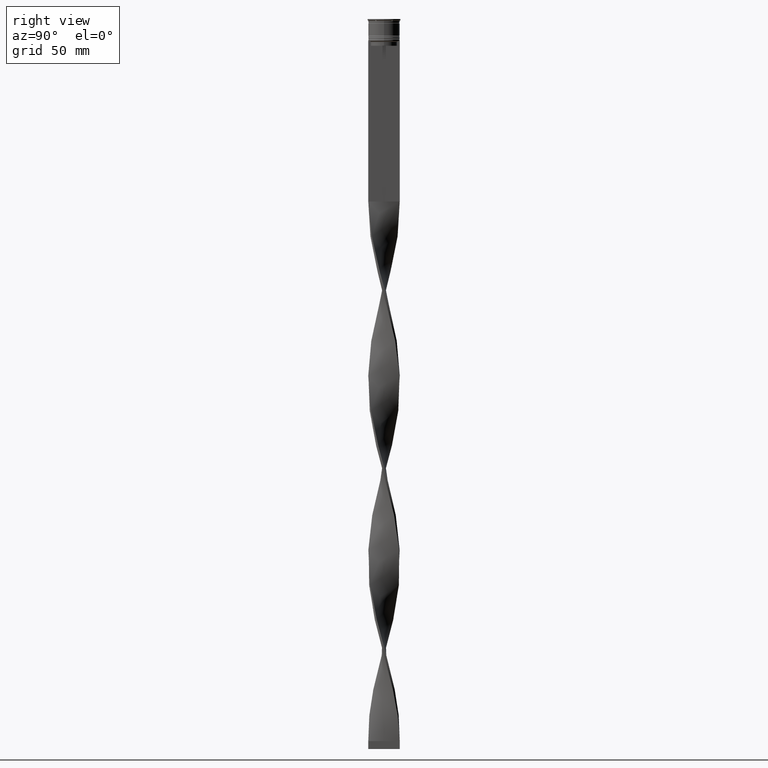
[diagram: clean part render]
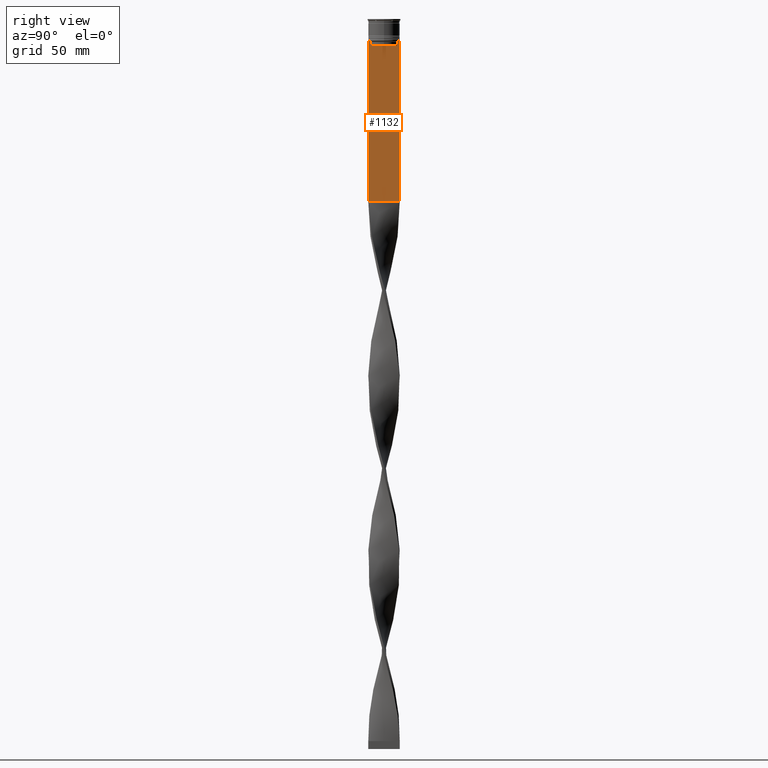
[diagram: same view with one face highlighted and labeled with its STEP entity id]
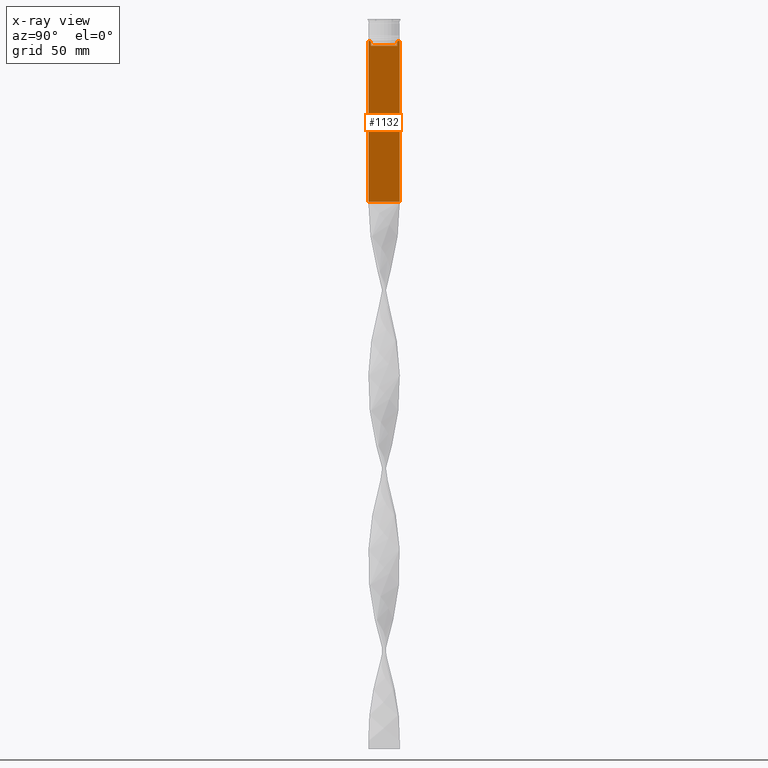
[diagram: x-ray of the same camera — body ghosted, the highlighted face saturated]
A machine part, right view. The second image highlights one B-rep face of the part: STEP entity #1132.
The next image is the same camera in x-ray: the body ghosted, the highlighted face saturated — about 0% of this face is hidden behind the body in this view.
In plain terms, the highlighted planar face has unit normal (-1, 0, 0).
Its self-contained STEP definition (entity closure, byte-faithful):
#22 = ORIENTED_EDGE ( 'NONE', *, *, #2847, .T. ) ;
#64 = CARTESIAN_POINT ( 'NONE',  ( 0.7500000000000001110, 9.871550030263739117, -14.00000000000000178 ) ) ;
#69 = VECTOR ( 'NONE', #2678, 1000.000000000000000 ) ;
#142 = ORIENTED_EDGE ( 'NONE', *, *, #377, .T. ) ;
#195 = CARTESIAN_POINT ( 'NONE',  ( 0.7500000000000001110, -8.366450860430608927, -17.00000000000000000 ) ) ;
#283 = EDGE_CURVE ( 'NONE', #2503, #1557, #3028, .T. ) ;
#349 = VERTEX_POINT ( 'NONE', #4151 ) ;
#364 = CARTESIAN_POINT ( 'NONE',  ( 0.7500000000000001110, 9.999999999999998224, 6.056171120131581098 ) ) ;
#377 = EDGE_CURVE ( 'NONE', #1167, #3737, #2797, .T. ) ;
#395 = ORIENTED_EDGE ( 'NONE', *, *, #491, .T. ) ;
#405 = LINE ( 'NONE', #2292, #3975 ) ;
#491 = EDGE_CURVE ( 'NONE', #2236, #4131, #3921, .T. ) ;
#504 = DIRECTION ( 'NONE',  ( 0.000000000000000000, 0.000000000000000000, -1.000000000000000000 ) ) ;
#507 = CARTESIAN_POINT ( 'NONE',  ( 0.7500000000000001110, 8.366450860430608927, -17.00000000000000000 ) ) ;
#565 = DIRECTION ( 'NONE',  ( 0.000000000000000000, -1.000000000000000000, 0.000000000000000000 ) ) ;
#603 = B_SPLINE_CURVE_WITH_KNOTS ( 'NONE', 3,
 ( #2564, #3943, #3193, #3157 ),
 .UNSPECIFIED., .F., .F.,
 ( 4, 4 ),
 ( 0.03866293624047253963, 0.03937282246709320616 ),
 .UNSPECIFIED. ) ;
#635 = AXIS2_PLACEMENT_3D ( 'NONE', #1492, #2860, #3490 ) ;
#732 = LINE ( 'NONE', #752, #899 ) ;
#752 = CARTESIAN_POINT ( 'NONE',  ( 0.7500000000000001110, -10.00000000000000533, -116.0000000000000000 ) ) ;
#814 = VERTEX_POINT ( 'NONE', #2828 ) ;
#829 = VECTOR ( 'NONE', #3901, 1000.000000000000000 ) ;
#899 = VECTOR ( 'NONE', #3820, 1000.000000000000000 ) ;
#990 = CARTESIAN_POINT ( 'NONE',  ( 0.7500000000000001110, -9.871550030263739117, -14.00000000000000178 ) ) ;
#1014 = CARTESIAN_POINT ( 'NONE',  ( 0.7500000000000001110, 8.533766897779925031, -14.33335221373273605 ) ) ;
#1043 = FACE_OUTER_BOUND ( 'NONE', #3156, .T. ) ;
#1052 = CARTESIAN_POINT ( 'NONE',  ( 0.7500000000000002220, 9.999999999999998224, -116.0000000000000000 ) ) ;
#1066 = EDGE_CURVE ( 'NONE', #1557, #1151, #1300, .T. ) ;
#1132 = ADVANCED_FACE ( 'NONE', ( #1043 ), #2732, .F. ) ;
#1139 = VECTOR ( 'NONE', #504, 1000.000000000000000 ) ;
#1151 = VERTEX_POINT ( 'NONE', #1586 ) ;
#1162 = CARTESIAN_POINT ( 'NONE',  ( 0.7500000000000001110, -10.00000000000000533, -14.00000000000000178 ) ) ;
#1167 = VERTEX_POINT ( 'NONE', #990 ) ;
#1300 = LINE ( 'NONE', #4322, #2346 ) ;
#1328 = CARTESIAN_POINT ( 'NONE',  ( 0.7500000000000001110, -10.00000000000000533, -14.00000000000000178 ) ) ;
#1365 = EDGE_CURVE ( 'NONE', #4154, #1167, #3514, .T. ) ;
#1429 = CARTESIAN_POINT ( 'NONE',  ( 0.7500000000000001110, -10.00000000000000533, 6.056171120131581098 ) ) ;
#1492 = CARTESIAN_POINT ( 'NONE',  ( 0.7500000000000001110, -10.00000000000000533, 6.056171120131581098 ) ) ;
#1557 = VERTEX_POINT ( 'NONE', #64 ) ;
#1571 = ORIENTED_EDGE ( 'NONE', *, *, #3239, .T. ) ;
#1586 = CARTESIAN_POINT ( 'NONE',  ( 0.7500000000000001110, 8.868342573446296839, -14.00000000000000178 ) ) ;
#1603 = DIRECTION ( 'NONE',  ( 0.000000000000000000, -1.000000000000000000, 0.000000000000000000 ) ) ;
#1636 = B_SPLINE_CURVE_WITH_KNOTS ( 'NONE', 3,
 ( #3018, #2388, #1014, #4438 ),
 .UNSPECIFIED., .F., .F.,
 ( 4, 4 ),
 ( 0.01512225952876174867, 0.01583070519299695222 ),
 .UNSPECIFIED. ) ;
#1785 = ORIENTED_EDGE ( 'NONE', *, *, #283, .T. ) ;
#1847 = CARTESIAN_POINT ( 'NONE',  ( 0.7500000000000001110, 8.366450860430608927, 0.000000000000000000 ) ) ;
#1917 = ORIENTED_EDGE ( 'NONE', *, *, #2320, .T. ) ;
#2001 = CARTESIAN_POINT ( 'NONE',  ( 0.7500000000000001110, -10.00000000000000533, -14.00000000000000178 ) ) ;
#2132 = VECTOR ( 'NONE', #3104, 1000.000000000000000 ) ;
#2189 = EDGE_CURVE ( 'NONE', #1151, #2236, #1636, .T. ) ;
#2235 = CARTESIAN_POINT ( 'NONE',  ( 0.7500000000000001110, -10.00000000000000533, -14.00000000000000178 ) ) ;
#2236 = VERTEX_POINT ( 'NONE', #2746 ) ;
#2292 = CARTESIAN_POINT ( 'NONE',  ( 0.7500000000000001110, 8.400000000000003908, -17.00000000000000000 ) ) ;
#2320 = EDGE_CURVE ( 'NONE', #3737, #349, #2811, .T. ) ;
#2346 = VECTOR ( 'NONE', #1603, 1000.000000000000000 ) ;
#2378 = ORIENTED_EDGE ( 'NONE', *, *, #2189, .T. ) ;
#2388 = CARTESIAN_POINT ( 'NONE',  ( 0.7500000000000001110, 8.701063075415250481, -14.16668448247791545 ) ) ;
#2450 = LINE ( 'NONE', #3508, #3256 ) ;
#2503 = VERTEX_POINT ( 'NONE', #2565 ) ;
#2564 = CARTESIAN_POINT ( 'NONE',  ( 0.7500000000000001110, -8.366450860430608927, -14.50000000000000000 ) ) ;
#2565 = CARTESIAN_POINT ( 'NONE',  ( 0.7500000000000001110, 9.999999999999998224, -14.00000000000000178 ) ) ;
#2678 = DIRECTION ( 'NONE',  ( 0.000000000000000000, -1.000000000000000000, 0.000000000000000000 ) ) ;
#2732 = PLANE ( 'NONE',  #635 ) ;
#2733 = EDGE_CURVE ( 'NONE', #4131, #4254, #405, .T. ) ;
#2746 = CARTESIAN_POINT ( 'NONE',  ( 0.7500000000000001110, 8.366450860430608927, -14.50000000000000000 ) ) ;
#2797 = LINE ( 'NONE', #2001, #69 ) ;
#2811 = LINE ( 'NONE', #1429, #829 ) ;
#2828 = CARTESIAN_POINT ( 'NONE',  ( 0.7500000000000001110, -8.366450860430608927, -14.50000000000000000 ) ) ;
#2842 = ORIENTED_EDGE ( 'NONE', *, *, #4334, .T. ) ;
#2847 = EDGE_CURVE ( 'NONE', #349, #3268, #732, .T. ) ;
#2860 = DIRECTION ( 'NONE',  ( -1.000000000000000000, 0.000000000000000000, 0.000000000000000000 ) ) ;
#2967 = ORIENTED_EDGE ( 'NONE', *, *, #1066, .T. ) ;
#3018 = CARTESIAN_POINT ( 'NONE',  ( 0.7500000000000001110, 8.868342573446296839, -14.00000000000000178 ) ) ;
#3028 = LINE ( 'NONE', #1328, #4437 ) ;
#3104 = DIRECTION ( 'NONE',  ( 0.000000000000000000, -1.000000000000000000, 0.000000000000000000 ) ) ;
#3156 = EDGE_LOOP ( 'NONE', ( #2967, #2378, #395, #3789, #1571, #2842, #3648, #142, #1917, #22, #4219, #1785 ) ) ;
#3157 = CARTESIAN_POINT ( 'NONE',  ( 0.7500000000000001110, -8.868342573446296839, -14.00000000000000178 ) ) ;
#3193 = CARTESIAN_POINT ( 'NONE',  ( 0.7500000000000001110, -8.701063080777121428, -14.16668447713511725 ) ) ;
#3239 = EDGE_CURVE ( 'NONE', #4254, #814, #2450, .T. ) ;
#3256 = VECTOR ( 'NONE', #3804, 1000.000000000000000 ) ;
#3268 = VERTEX_POINT ( 'NONE', #1052 ) ;
#3310 = EDGE_CURVE ( 'NONE', #2503, #3268, #3479, .T. ) ;
#3479 = LINE ( 'NONE', #364, #3836 ) ;
#3490 = DIRECTION ( 'NONE',  ( 0.000000000000000000, 0.000000000000000000, 1.000000000000000000 ) ) ;
#3508 = CARTESIAN_POINT ( 'NONE',  ( 0.7500000000000001110, -8.366450860430608927, 0.000000000000000000 ) ) ;
#3514 = LINE ( 'NONE', #1162, #2132 ) ;
#3528 = DIRECTION ( 'NONE',  ( 0.000000000000000000, 0.000000000000000000, -1.000000000000000000 ) ) ;
#3648 = ORIENTED_EDGE ( 'NONE', *, *, #1365, .T. ) ;
#3685 = DIRECTION ( 'NONE',  ( 0.000000000000000000, -1.000000000000000000, 0.000000000000000000 ) ) ;
#3737 = VERTEX_POINT ( 'NONE', #2235 ) ;
#3789 = ORIENTED_EDGE ( 'NONE', *, *, #2733, .T. ) ;
#3804 = DIRECTION ( 'NONE',  ( -0.000000000000000000, -0.000000000000000000, 1.000000000000000000 ) ) ;
#3820 = DIRECTION ( 'NONE',  ( 0.000000000000000000, 1.000000000000000000, 0.000000000000000000 ) ) ;
#3836 = VECTOR ( 'NONE', #3528, 1000.000000000000000 ) ;
#3901 = DIRECTION ( 'NONE',  ( 0.000000000000000000, 0.000000000000000000, -1.000000000000000000 ) ) ;
#3921 = LINE ( 'NONE', #1847, #1139 ) ;
#3943 = CARTESIAN_POINT ( 'NONE',  ( 0.7500000000000001110, -8.533766903463440912, -14.33335220807192023 ) ) ;
#3975 = VECTOR ( 'NONE', #3685, 1000.000000000000000 ) ;
#4131 = VERTEX_POINT ( 'NONE', #507 ) ;
#4151 = CARTESIAN_POINT ( 'NONE',  ( 0.7500000000000001110, -10.00000000000000533, -116.0000000000000000 ) ) ;
#4154 = VERTEX_POINT ( 'NONE', #4252 ) ;
#4219 = ORIENTED_EDGE ( 'NONE', *, *, #3310, .F. ) ;
#4252 = CARTESIAN_POINT ( 'NONE',  ( 0.7500000000000001110, -8.868342573446296839, -14.00000000000000178 ) ) ;
#4254 = VERTEX_POINT ( 'NONE', #195 ) ;
#4322 = CARTESIAN_POINT ( 'NONE',  ( 0.7500000000000001110, -10.00000000000000533, -14.00000000000000178 ) ) ;
#4334 = EDGE_CURVE ( 'NONE', #814, #4154, #603, .T. ) ;
#4437 = VECTOR ( 'NONE', #565, 1000.000000000000000 ) ;
#4438 = CARTESIAN_POINT ( 'NONE',  ( 0.7500000000000001110, 8.366450860430608927, -14.50000000000000000 ) ) ;